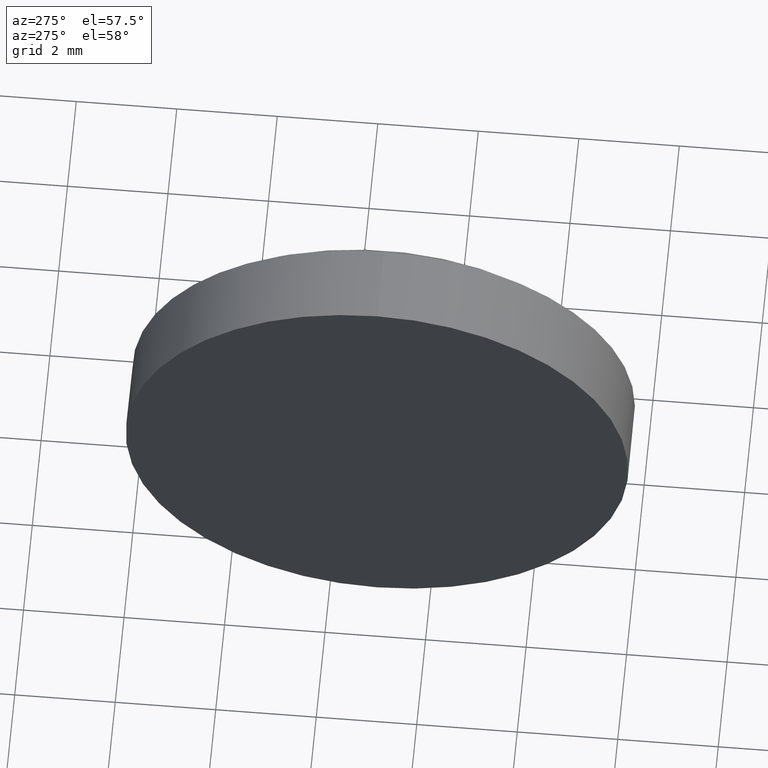
[diagram: clean part render]
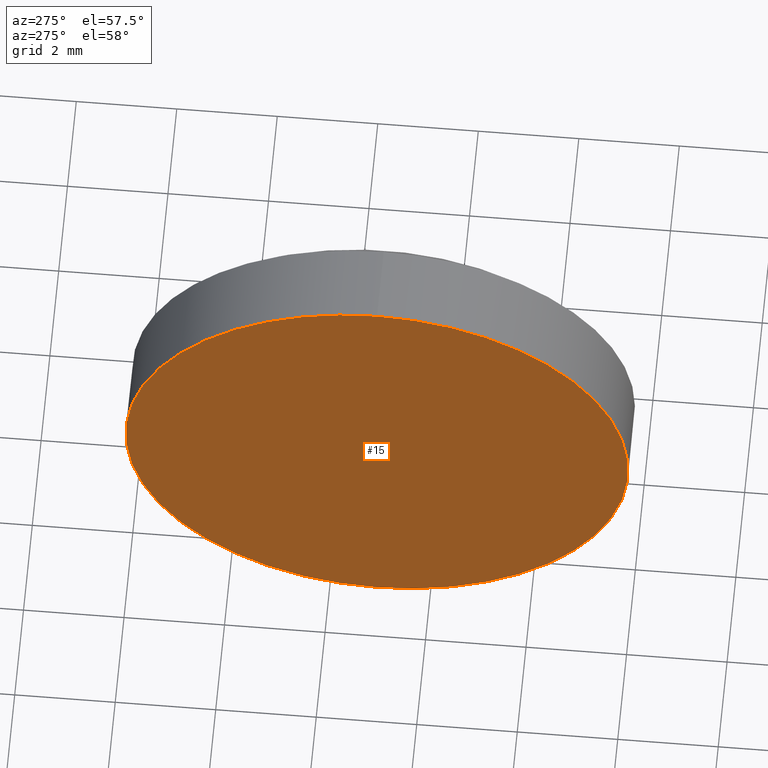
[diagram: same view with one face highlighted and labeled with its STEP entity id]
A machine part, auxiliary view. The second image highlights one B-rep face of the part: STEP entity #15.
In plain terms, the highlighted planar face has unit normal (1, 0, 0).
Its self-contained STEP definition (entity closure, byte-faithful):
#8 = PLANE ( 'NONE',  #17 ) ;
#15 = ADVANCED_FACE ( 'NONE', ( #104 ), #8, .F. ) ;
#17 = AXIS2_PLACEMENT_3D ( 'NONE', #158, #20, #85 ) ;
#20 = DIRECTION ( 'NONE',  ( 1.000000000000000000, 0.0000000000000000000, 0.0000000000000000000 ) ) ;
#28 = CARTESIAN_POINT ( 'NONE',  ( 523.0056482525305900, 17.05461516330814200, -4.999999999999997300 ) ) ;
#38 = EDGE_LOOP ( 'NONE', ( #112, #140 ) ) ;
#44 = CARTESIAN_POINT ( 'NONE',  ( 523.0056482525305900, 17.05461516330814200, 0.0000000000000000000 ) ) ;
#49 = EDGE_CURVE ( 'NONE', #174, #67, #138, .T. ) ;
#57 = CARTESIAN_POINT ( 'NONE',  ( 523.0056482525305900, 17.05461516330814200, 4.999999999999997300 ) ) ;
#67 = VERTEX_POINT ( 'NONE', #57 ) ;
#85 = DIRECTION ( 'NONE',  ( 0.0000000000000000000, 0.0000000000000000000, -1.000000000000000000 ) ) ;
#98 = AXIS2_PLACEMENT_3D ( 'NONE', #44, #186, #106 ) ;
#99 = DIRECTION ( 'NONE',  ( -1.000000000000000000, -0.0000000000000000000, -0.0000000000000000000 ) ) ;
#104 = FACE_OUTER_BOUND ( 'NONE', #38, .T. ) ;
#106 = DIRECTION ( 'NONE',  ( 0.0000000000000000000, 0.0000000000000000000, 1.000000000000000000 ) ) ;
#112 = ORIENTED_EDGE ( 'NONE', *, *, #124, .T. ) ;
#114 = DIRECTION ( 'NONE',  ( 0.0000000000000000000, 0.0000000000000000000, 1.000000000000000000 ) ) ;
#123 = AXIS2_PLACEMENT_3D ( 'NONE', #127, #99, #114 ) ;
#124 = EDGE_CURVE ( 'NONE', #67, #174, #182, .T. ) ;
#127 = CARTESIAN_POINT ( 'NONE',  ( 523.0056482525305900, 17.05461516330814200, 0.0000000000000000000 ) ) ;
#138 = CIRCLE ( 'NONE', #123, 4.999999999999997300 ) ;
#140 = ORIENTED_EDGE ( 'NONE', *, *, #49, .T. ) ;
#158 = CARTESIAN_POINT ( 'NONE',  ( 523.0056482525305900, 17.05461516330814200, 0.0000000000000000000 ) ) ;
#174 = VERTEX_POINT ( 'NONE', #28 ) ;
#182 = CIRCLE ( 'NONE', #98, 4.999999999999997300 ) ;
#186 = DIRECTION ( 'NONE',  ( -1.000000000000000000, -0.0000000000000000000, -0.0000000000000000000 ) ) ;